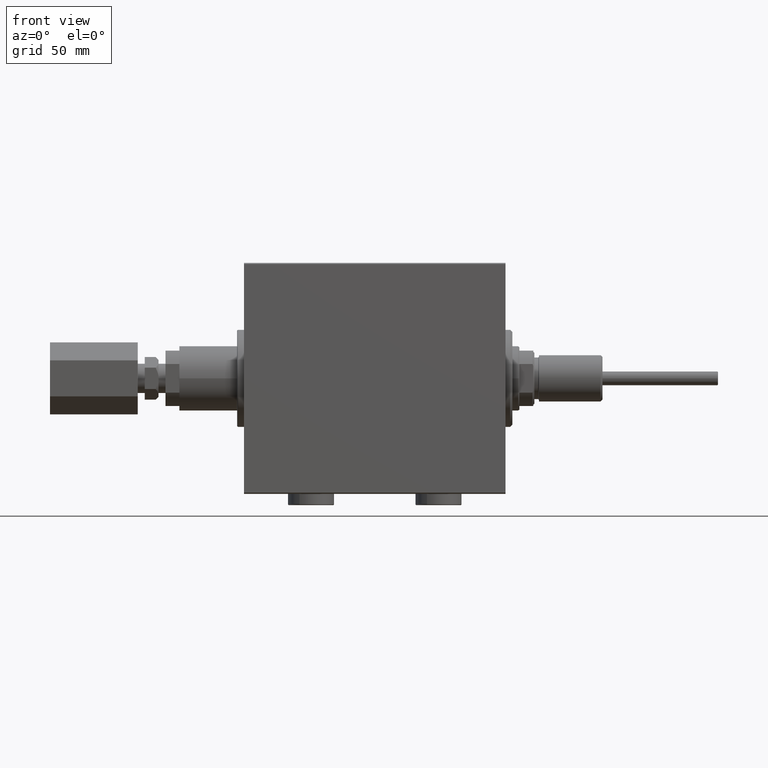
[diagram: clean part render]
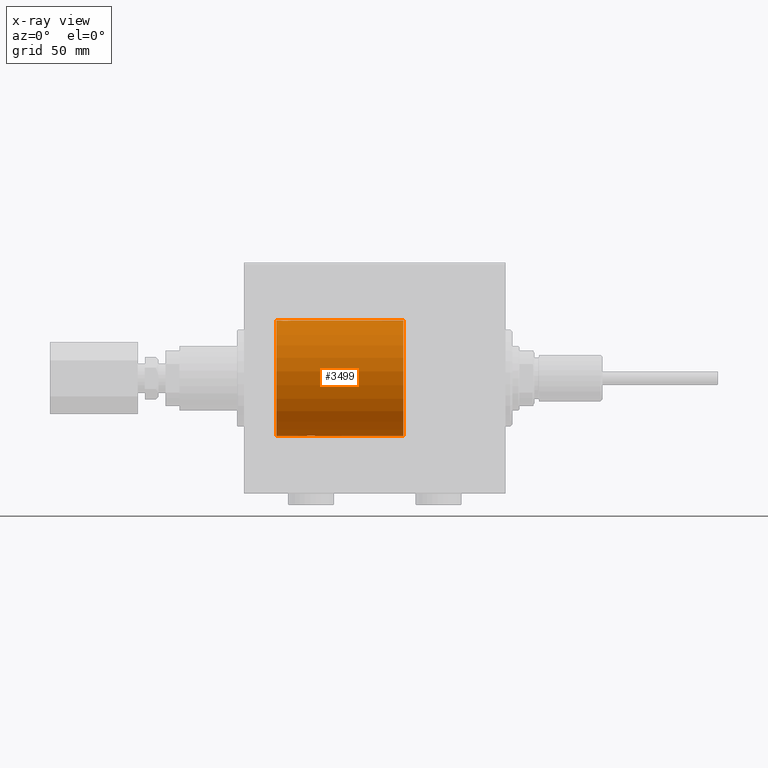
[diagram: x-ray — body ghosted, one internal face saturated and labeled with its STEP entity id]
A machine part, front view, then the same camera in x-ray: the body is ghosted and one INTERNAL B-rep face — a face not visible from any outside direction — is saturated and labeled: STEP entity #3499.
In plain terms, the highlighted cylindrical surface (partial cylindrical patch) has radius 25 mm, axis along (1, 0, -0).
Its self-contained STEP definition (entity closure, byte-faithful):
#120 = CARTESIAN_POINT ( 'NONE',  ( 95.84916515999327657, 2.419847904056417143, 24.88263203448060423 ) ) ;
#604 = CARTESIAN_POINT ( 'NONE',  ( 96.45304113529935819, 2.169541443998001640, 24.90585268157805032 ) ) ;
#1059 = CARTESIAN_POINT ( 'NONE',  ( 85.30745236819798549, 2.247309494740967750, -24.89886665287248491 ) ) ;
#1096 = CARTESIAN_POINT ( 'NONE',  ( 93.54924793645207615, 1.884745564839642951, 24.92912799315485017 ) ) ;
#1271 = EDGE_LOOP ( 'NONE', ( #31275, #46923, #3926, #4657, #16137, #41635, #6995, #30538 ) ) ;
#2336 = CARTESIAN_POINT ( 'NONE',  ( 86.70000000000001705, 3.061616978466108082E-15, -25.00000000000000000 ) ) ;
#2404 = CARTESIAN_POINT ( 'NONE',  ( 81.95348321179130835, 1.109060198064600433, -24.97584694923138215 ) ) ;
#3499 = ADVANCED_FACE ( 'NONE', ( #27648 ), #45918, .F. ) ;
#3926 = ORIENTED_EDGE ( 'NONE', *, *, #36021, .T. ) ;
#4056 = CARTESIAN_POINT ( 'NONE',  ( 95.52637449227346167, 2.484060984458426269, 24.87630362147114127 ) ) ;
#4298 = CARTESIAN_POINT ( 'NONE',  ( 95.03773523386620070, 2.500059064463590275, 24.87467999146395314 ) ) ;
#4599 = LINE ( 'NONE', #12250, #32523 ) ;
#4657 = ORIENTED_EDGE ( 'NONE', *, *, #12868, .T. ) ;
#4784 = CARTESIAN_POINT ( 'NONE',  ( 93.21241165387910144, 1.525124164792362347, 24.95380474534677262 ) ) ;
#4873 = CARTESIAN_POINT ( 'NONE',  ( 99.20000000000000284, 0.000000000000000000, 25.00000000000000000 ) ) ;
#6083 = CARTESIAN_POINT ( 'NONE',  ( 81.77980964520837404, 0.6474866336855796822, -24.99212517028518477 ) ) ;
#6334 = CARTESIAN_POINT ( 'NONE',  ( 82.03029543590132278, 1.252624798282899077, -24.96896960740658500 ) ) ;
#6995 = ORIENTED_EDGE ( 'NONE', *, *, #37732, .F. ) ;
#7479 = CARTESIAN_POINT ( 'NONE',  ( 82.21175333178058509, 1.524323445682844280, -24.95385641887458306 ) ) ;
#7512 = CARTESIAN_POINT ( 'NONE',  ( 93.03138181747520719, 1.254434665533499693, 24.96887599906795785 ) ) ;
#7754 = CARTESIAN_POINT ( 'NONE',  ( 97.70000000000000284, 0.1652919547268412448, 24.99999999999999289 ) ) ;
#7958 = CARTESIAN_POINT ( 'NONE',  ( 86.70000000000004547, 0.1632133729155565149, -25.00000000000001421 ) ) ;
#8223 = DIRECTION ( 'NONE',  ( -1.000000000000000000, 0.000000000000000000, 0.000000000000000000 ) ) ;
#8479 = CARTESIAN_POINT ( 'NONE',  ( 94.55125657267362271, 2.419890192637103254, 24.88262770889313913 ) ) ;
#8687 = CARTESIAN_POINT ( 'NONE',  ( 85.85075206354797217, 1.884745564839666487, -24.92912799315484662 ) ) ;
#9107 = VERTEX_POINT ( 'NONE', #14638 ) ;
#9172 = CARTESIAN_POINT ( 'NONE',  ( 81.70000000000000284, -1.201333969079745055E-15, -25.00000000000000000 ) ) ;
#9309 = VERTEX_POINT ( 'NONE', #9172 ) ;
#10944 = CARTESIAN_POINT ( 'NONE',  ( 82.94695886470064750, 2.169541443998026953, -24.90585268157804677 ) ) ;
#11453 = CARTESIAN_POINT ( 'NONE',  ( 92.70000000000000284, -1.940203396391078535E-23, 25.00000000000000000 ) ) ;
#11695 = CARTESIAN_POINT ( 'NONE',  ( 92.78033563915884940, 0.6495680347195791349, 24.99207398768918864 ) ) ;
#11896 = CARTESIAN_POINT ( 'NONE',  ( 99.20000000000000284, 0.000000000000000000, 0.000000000000000000 ) ) ;
#11906 = CARTESIAN_POINT ( 'NONE',  ( 86.36861818252482692, 1.254434665533512794, -24.96887599906796495 ) ) ;
#12093 = CARTESIAN_POINT ( 'NONE',  ( 99.20000000000000284, 3.061616997868382254E-15, -25.00000000000000000 ) ) ;
#12191 = CARTESIAN_POINT ( 'NONE',  ( 94.39536086700186956, 2.372637051600611002, 24.88723676875459034 ) ) ;
#12250 = CARTESIAN_POINT ( 'NONE',  ( 99.20000000000000284, 0.000000000000000000, 25.00000000000000000 ) ) ;
#12631 = CARTESIAN_POINT ( 'NONE',  ( 86.68364115014315985, 0.3289998300458046310, -24.99834914448732803 ) ) ;
#12868 = EDGE_CURVE ( 'NONE', #37546, #36981, #14355, .T. ) ;
#12875 = VERTEX_POINT ( 'NONE', #26475 ) ;
#14355 = B_SPLINE_CURVE_WITH_KNOTS ( 'NONE', 3,
 ( #34858, #7754, #38307, #27210, #38064, #19834, #44991, #42247, #41280, #45965, #30917, #604, #37821, #22548, #120, #4056, #30182, #4298, #19589, #8479, #12191, #41759, #19336, #30669, #1096, #38558, #4784, #7512, #18854, #37580, #11695, #33877, #45231, #11453 ),
 .UNSPECIFIED., .F., .F.,
 ( 4, 2, 2, 2, 2, 2, 2, 2, 2, 2, 2, 2, 2, 2, 2, 2, 4 ),
 ( 5.636207356056362162E-21, 0.0004888140276038924377, 0.0009776280552077848754, 0.001466442082811677313, 0.001955256110415569751, 0.002444070138019462188, 0.002932884165623354626, 0.003421698193227247064, 0.003910512220831139502, 0.004399326248435031506, 0.004888140276038924377, 0.005376954303642817248, 0.005865768331246709252, 0.006354582358850601256, 0.006843396386454494128, 0.007332210414058386999, 0.007821024441662279003 ),
 .UNSPECIFIED. ) ;
#14635 = CARTESIAN_POINT ( 'NONE',  ( 82.54785002149175455, 1.883339088673210426, -24.92922739080160710 ) ) ;
#14638 = CARTESIAN_POINT ( 'NONE',  ( 44.20000000000000284, 3.061616997868382254E-15, -25.00000000000000000 ) ) ;
#14897 = CARTESIAN_POINT ( 'NONE',  ( 99.20000000000000284, 0.000000000000000000, 0.000000000000000000 ) ) ;
#15840 = DIRECTION ( 'NONE',  ( -1.000000000000000000, -0.000000000000000000, -0.000000000000000000 ) ) ;
#16054 = VECTOR ( 'NONE', #38456, 1000.000000000000000 ) ;
#16137 = ORIENTED_EDGE ( 'NONE', *, *, #16188, .T. ) ;
#16188 = EDGE_CURVE ( 'NONE', #36981, #27305, #23842, .T. ) ;
#16206 = DIRECTION ( 'NONE',  ( -1.000000000000000000, -0.000000000000000000, -0.000000000000000000 ) ) ;
#17114 = VECTOR ( 'NONE', #27112, 1000.000000000000000 ) ;
#17228 = CIRCLE ( 'NONE', #27450, 25.00000000000000000 ) ;
#18581 = CARTESIAN_POINT ( 'NONE',  ( 81.70000000000000284, -1.201333969079745055E-15, -25.00000000000000000 ) ) ;
#18854 = CARTESIAN_POINT ( 'NONE',  ( 92.95307623591048696, 1.108237982093033480, 24.97588368351298982 ) ) ;
#19023 = CARTESIAN_POINT ( 'NONE',  ( 44.20000000000000284, 0.000000000000000000, 0.000000000000000000 ) ) ;
#19158 = EDGE_CURVE ( 'NONE', #12875, #29296, #26866, .T. ) ;
#19336 = CARTESIAN_POINT ( 'NONE',  ( 93.94628466518807386, 2.169035936979771151, 24.90589343070811168 ) ) ;
#19589 = CARTESIAN_POINT ( 'NONE',  ( 94.87198227724999811, 2.483775543901323601, 24.87633190989611620 ) ) ;
#19834 = CARTESIAN_POINT ( 'NONE',  ( 97.44651678820869733, 1.109060198064586666, 24.97584694923137505 ) ) ;
#20280 = CARTESIAN_POINT ( 'NONE',  ( 84.52801772275006442, 2.483775543901352467, -24.87633190989611265 ) ) ;
#21378 = CARTESIAN_POINT ( 'NONE',  ( 82.31730287024107895, 1.652881481536647268, -24.94556728625771669 ) ) ;
#22324 = B_SPLINE_CURVE_WITH_KNOTS ( 'NONE', 3,
 ( #18581, #48664, #39845, #6083, #36157, #2404, #6334, #7479, #21378, #14635, #44707, #10944, #25971, #44953, #26206, #41243, #42700, #38271, #20280, #42212, #45433, #1059, #45682, #31366, #8687, #35300, #23723, #11906, #34326, #38764, #39000, #12631, #7958, #26932 ),
 .UNSPECIFIED., .F., .F.,
 ( 4, 2, 2, 2, 2, 2, 2, 2, 2, 2, 2, 2, 2, 2, 2, 2, 4 ),
 ( 1.839871823107361655E-19, 0.0004888140276038956903, 0.0009776280552077911638, 0.001466442082811686854, 0.001955256110415582328, 0.002444070138019477801, 0.002932884165623373708, 0.003421698193227268748, 0.003910512220831164655, 0.004399326248435060129, 0.004888140276038954735, 0.005376954303642851075, 0.005865768331246746549, 0.006354582358850642890, 0.006843396386454538363, 0.007332210414058434704, 0.007821024441662331045 ),
 .UNSPECIFIED. ) ;
#22548 = CARTESIAN_POINT ( 'NONE',  ( 96.00683588887133624, 2.371819214216734473, 24.88731391344728294 ) ) ;
#22957 = DIRECTION ( 'NONE',  ( -1.000000000000000000, 0.000000000000000000, 0.000000000000000000 ) ) ;
#23107 = EDGE_CURVE ( 'NONE', #27305, #9107, #17228, .T. ) ;
#23227 = DIRECTION ( 'NONE',  ( 0.000000000000000000, 0.000000000000000000, 1.000000000000000000 ) ) ;
#23723 = CARTESIAN_POINT ( 'NONE',  ( 86.18758834612096109, 1.525124164792379222, -24.95380474534677262 ) ) ;
#23842 = LINE ( 'NONE', #4873, #34423 ) ;
#25670 = CARTESIAN_POINT ( 'NONE',  ( 97.70000000000000284, -5.800234900828521566E-18, 25.00000000000000000 ) ) ;
#25971 = CARTESIAN_POINT ( 'NONE',  ( 83.09234004476095947, 2.247131495942878310, -24.89888190765472942 ) ) ;
#26206 = CARTESIAN_POINT ( 'NONE',  ( 83.55083484000675753, 2.419847904056447785, -24.88263203448060779 ) ) ;
#26475 = CARTESIAN_POINT ( 'NONE',  ( 99.20000000000000284, 3.061616997868382254E-15, -25.00000000000000000 ) ) ;
#26538 = CARTESIAN_POINT ( 'NONE',  ( 44.20000000000000284, 0.000000000000000000, 25.00000000000000000 ) ) ;
#26866 = LINE ( 'NONE', #12093, #17114 ) ;
#26932 = CARTESIAN_POINT ( 'NONE',  ( 86.70000000000001705, 3.061616978466108082E-15, -25.00000000000000000 ) ) ;
#27112 = DIRECTION ( 'NONE',  ( -1.000000000000000000, -0.000000000000000000, -0.000000000000000000 ) ) ;
#27210 = CARTESIAN_POINT ( 'NONE',  ( 97.62019035479158902, 0.6474866336855745752, 24.99212517028518121 ) ) ;
#27305 = VERTEX_POINT ( 'NONE', #26538 ) ;
#27450 = AXIS2_PLACEMENT_3D ( 'NONE', #19023, #22957, #37991 ) ;
#27648 = FACE_OUTER_BOUND ( 'NONE', #1271, .T. ) ;
#28550 = CIRCLE ( 'NONE', #41943, 25.00000000000000000 ) ;
#29296 = VERTEX_POINT ( 'NONE', #2336 ) ;
#30182 = CARTESIAN_POINT ( 'NONE',  ( 95.36407969376736560, 2.499940606140120813, 24.87469189697262095 ) ) ;
#30407 = DIRECTION ( 'NONE',  ( 0.000000000000000000, 0.000000000000000000, 1.000000000000000000 ) ) ;
#30538 = ORIENTED_EDGE ( 'NONE', *, *, #33135, .T. ) ;
#30669 = CARTESIAN_POINT ( 'NONE',  ( 93.67549655812818798, 1.988066470813627307, 24.92099187803980698 ) ) ;
#30917 = CARTESIAN_POINT ( 'NONE',  ( 96.72633503512339814, 1.986787236855537264, 24.92109717386378165 ) ) ;
#30980 = DIRECTION ( 'NONE',  ( -1.000000000000000000, -0.000000000000000000, -0.000000000000000000 ) ) ;
#31275 = ORIENTED_EDGE ( 'NONE', *, *, #19158, .F. ) ;
#31366 = CARTESIAN_POINT ( 'NONE',  ( 85.72450344187178928, 1.988066470813649955, -24.92099187803979632 ) ) ;
#31544 = LINE ( 'NONE', #42636, #16054 ) ;
#32523 = VECTOR ( 'NONE', #30980, 1000.000000000000000 ) ;
#33135 = EDGE_CURVE ( 'NONE', #9309, #29296, #22324, .T. ) ;
#33475 = CARTESIAN_POINT ( 'NONE',  ( 92.70000000000000284, -1.940203396391078535E-23, 25.00000000000000000 ) ) ;
#33877 = CARTESIAN_POINT ( 'NONE',  ( 92.71635884985691689, 0.3289998300457990243, 24.99834914448732448 ) ) ;
#34326 = CARTESIAN_POINT ( 'NONE',  ( 86.44692376408954715, 1.108237982093043250, -24.97588368351298627 ) ) ;
#34423 = VECTOR ( 'NONE', #16206, 1000.000000000000000 ) ;
#34858 = CARTESIAN_POINT ( 'NONE',  ( 97.70000000000000284, -5.800234900828521566E-18, 25.00000000000000000 ) ) ;
#35195 = AXIS2_PLACEMENT_3D ( 'NONE', #11896, #15840, #23227 ) ;
#35285 = EDGE_CURVE ( 'NONE', #48787, #12875, #28550, .T. ) ;
#35300 = CARTESIAN_POINT ( 'NONE',  ( 86.08423301929988725, 1.651337078997092034, -24.94567646296264840 ) ) ;
#36021 = EDGE_CURVE ( 'NONE', #48787, #37546, #4599, .T. ) ;
#36157 = CARTESIAN_POINT ( 'NONE',  ( 81.82793608542407071, 0.8063280894284560185, -24.98745245851526064 ) ) ;
#36981 = VERTEX_POINT ( 'NONE', #33475 ) ;
#37546 = VERTEX_POINT ( 'NONE', #25670 ) ;
#37580 = CARTESIAN_POINT ( 'NONE',  ( 92.82762890801417655, 0.8054273576766354248, 24.98748174524255461 ) ) ;
#37732 = EDGE_CURVE ( 'NONE', #9309, #9107, #31544, .T. ) ;
#37821 = CARTESIAN_POINT ( 'NONE',  ( 96.30765995523903200, 2.247131495942852997, 24.89888190765473297 ) ) ;
#37991 = DIRECTION ( 'NONE',  ( 0.000000000000000000, 0.000000000000000000, 1.000000000000000000 ) ) ;
#38064 = CARTESIAN_POINT ( 'NONE',  ( 97.57206391457593497, 0.8063280894284455824, 24.98745245851526064 ) ) ;
#38271 = CARTESIAN_POINT ( 'NONE',  ( 84.36226476613386183, 2.500059064463620473, -24.87467999146394959 ) ) ;
#38307 = CARTESIAN_POINT ( 'NONE',  ( 97.68376868269162117, 0.3278008924763861631, 24.99836206720144105 ) ) ;
#38456 = DIRECTION ( 'NONE',  ( -1.000000000000000000, -0.000000000000000000, -0.000000000000000000 ) ) ;
#38558 = CARTESIAN_POINT ( 'NONE',  ( 93.31576698070014686, 1.651337078997071384, 24.94567646296265551 ) ) ;
#38764 = CARTESIAN_POINT ( 'NONE',  ( 86.57237109198584335, 0.8054273576766418641, -24.98748174524255461 ) ) ;
#39000 = CARTESIAN_POINT ( 'NONE',  ( 86.61966436084118470, 0.6495680347195885718, -24.99207398768919219 ) ) ;
#39845 = CARTESIAN_POINT ( 'NONE',  ( 81.71623131730842715, 0.3278008924763887166, -24.99836206720143750 ) ) ;
#41243 = CARTESIAN_POINT ( 'NONE',  ( 83.87362550772657244, 2.484060984458457355, -24.87630362147113772 ) ) ;
#41280 = CARTESIAN_POINT ( 'NONE',  ( 97.08269712975892674, 1.652881481536627284, 24.94556728625771669 ) ) ;
#41635 = ORIENTED_EDGE ( 'NONE', *, *, #23107, .T. ) ;
#41759 = CARTESIAN_POINT ( 'NONE',  ( 94.09254763180203440, 2.247309494740935776, 24.89886665287248135 ) ) ;
#41943 = AXIS2_PLACEMENT_3D ( 'NONE', #14897, #8223, #30407 ) ;
#42212 = CARTESIAN_POINT ( 'NONE',  ( 84.84874342732641139, 2.419890192637131232, -24.88262770889313202 ) ) ;
#42247 = CARTESIAN_POINT ( 'NONE',  ( 97.18824666821940639, 1.524323445682826739, 24.95385641887458661 ) ) ;
#42636 = CARTESIAN_POINT ( 'NONE',  ( 99.20000000000000284, 3.061616997868382254E-15, -25.00000000000000000 ) ) ;
#42700 = CARTESIAN_POINT ( 'NONE',  ( 84.03592030623264009, 2.499940606140151900, -24.87469189697261029 ) ) ;
#44707 = CARTESIAN_POINT ( 'NONE',  ( 82.67366496487657912, 1.986787236855559691, -24.92109717386378165 ) ) ;
#44953 = CARTESIAN_POINT ( 'NONE',  ( 83.39316411112868366, 2.371819214216762450, -24.88731391344728294 ) ) ;
#44991 = CARTESIAN_POINT ( 'NONE',  ( 97.36970456409868291, 1.252624798282884644, 24.96896960740658500 ) ) ;
#45231 = CARTESIAN_POINT ( 'NONE',  ( 92.70000000000000284, 0.1632133729155548774, 25.00000000000000355 ) ) ;
#45433 = CARTESIAN_POINT ( 'NONE',  ( 85.00463913299816454, 2.372637051600642089, -24.88723676875457969 ) ) ;
#45682 = CARTESIAN_POINT ( 'NONE',  ( 85.45371533481194604, 2.169035936979796464, -24.90589343070811168 ) ) ;
#45918 = CYLINDRICAL_SURFACE ( 'NONE', #35195, 25.00000000000000000 ) ;
#45965 = CARTESIAN_POINT ( 'NONE',  ( 96.85214997850826535, 1.883339088673186890, 24.92922739080161065 ) ) ;
#46482 = CARTESIAN_POINT ( 'NONE',  ( 99.20000000000000284, 0.000000000000000000, 25.00000000000000000 ) ) ;
#46923 = ORIENTED_EDGE ( 'NONE', *, *, #35285, .F. ) ;
#48664 = CARTESIAN_POINT ( 'NONE',  ( 81.70000000000000284, 0.1652919547268407729, -25.00000000000000355 ) ) ;
#48787 = VERTEX_POINT ( 'NONE', #46482 ) ;